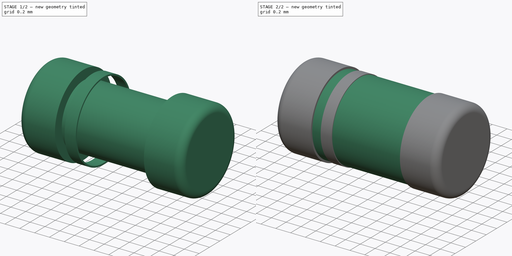
[diagram: build sequence overview — one tinted view per stage of 2, left to right]
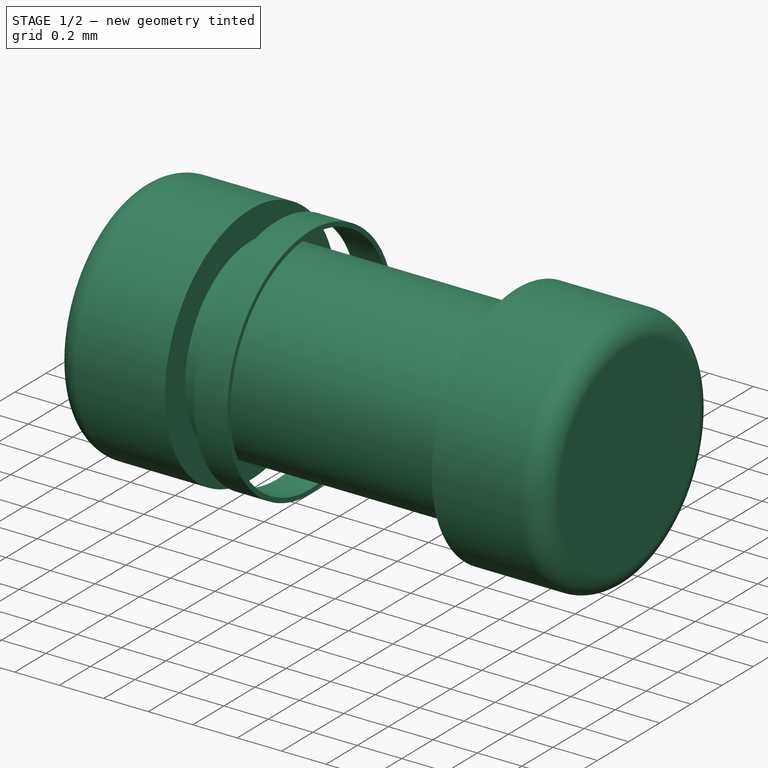
[diagram: stage 1 of 2 — iso view after this stage's code; geometry added in this stage tinted green]
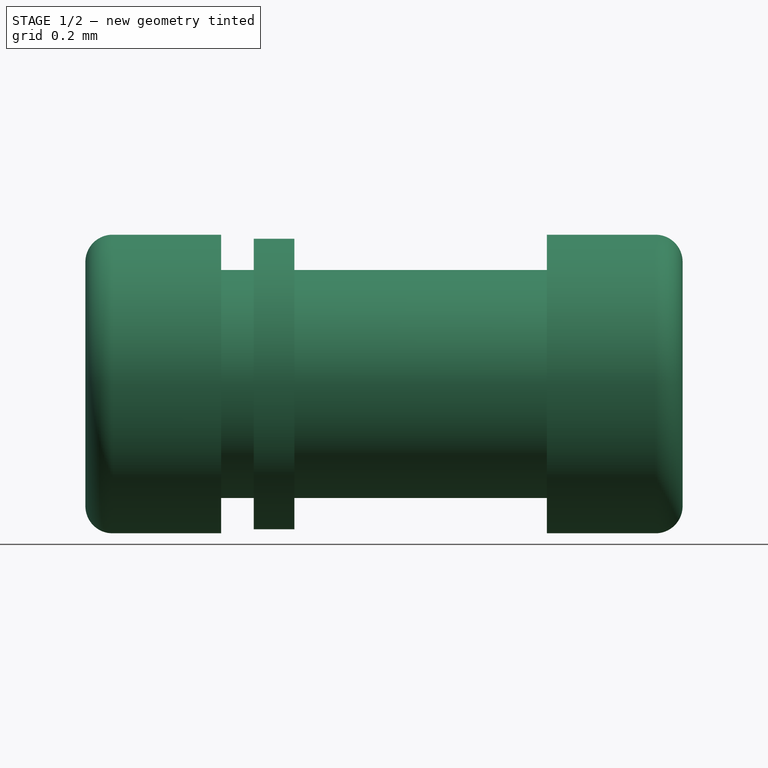
[diagram: stage 1 of 2 — front view after this stage's code; geometry added in this stage tinted green]
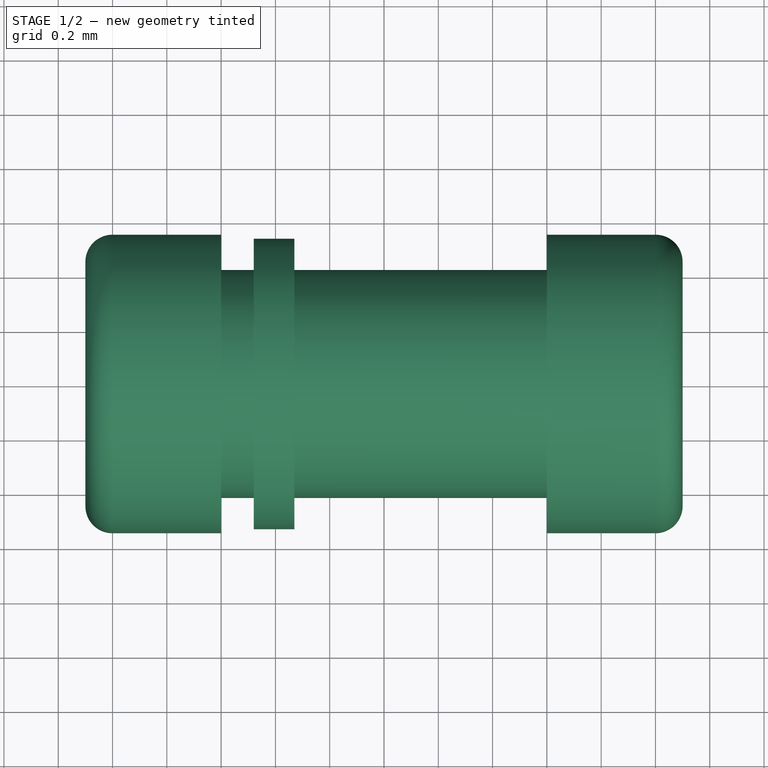
[diagram: stage 1 of 2 — top view after this stage's code; geometry added in this stage tinted green]
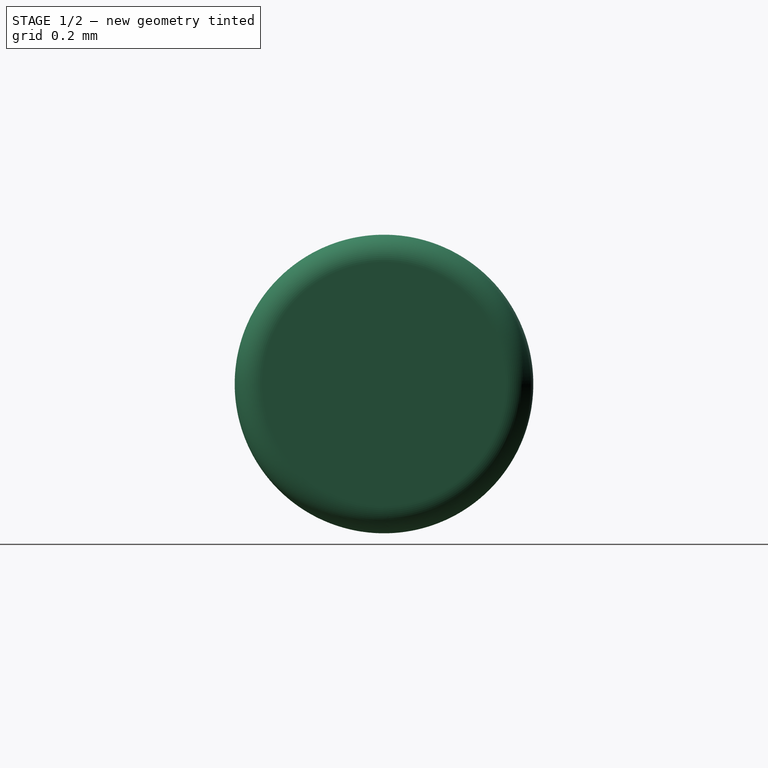
[diagram: stage 1 of 2 — right view after this stage's code; geometry added in this stage tinted green]
FCSTD DOCUMENT  (FreeCAD 0.17R10958 (Git))
Label: D_MicroMELF_Standard
License: All rights reserved
LicenseURL: http://en.wikipedia.org/wiki/All_rights_reserved
objects: Sketcher::SketchObject×3, PartDesign::Revolution×3, Spreadsheet::Sheet×1, Part::MultiFuse×1
note: 10 computed .brp shape members not serialized (recipe doc carries the construction recipe); baked Part::Feature solids carry a one-line shape summary decoded from their .brp

FEATURE [PartDesign::Revolution] Revolution001
  Angle = 360
  Axis = (10,0,0)
  Base = (-8.9,0,0.55)
  Placement = pos=(0,0,0) rot=(1,0,0;1.5708rad)
  Profile = -> Sketch001
  ReferenceAxis = -> Sketch001 [Axis0]
  Reversed = true
FEATURE [Sketcher::SketchObject] Sketch002
  MapMode = 5
  Placement = pos=(0,0,0) rot=(1,0,0;1.5708rad)
  expr: Constraints[13] = (Spreadsheet.Lall - 2 * Spreadsheet.KK) * 0.40000000000000002
  expr: Constraints[10] = Spreadsheet.Di / 2 + 0.01
  expr: Constraints[1] = Spreadsheet.Do / 2
  sketch-geometry (5):
    g0: LineSegment [constr] StartX=-15.0618 StartY=0.55 StartZ=0 EndX=27.6655 EndY=0.55 EndZ=0
    g1: LineSegment StartX=-0.48 StartY=0.035 StartZ=0 EndX=-0.33 EndY=0.035 EndZ=0
    g2: LineSegment StartX=-0.33 StartY=0.035 StartZ=0 EndX=-0.33 EndY=0.015 EndZ=0
    g3: LineSegment StartX=-0.33 StartY=0.015 StartZ=0 EndX=-0.48 EndY=0.015 EndZ=0
    g4: LineSegment StartX=-0.48 StartY=0.015 StartZ=0 EndX=-0.48 EndY=0.035 EndZ=0
  constraints (14):
    c: Horizontal(g0)
    c: DistanceY(g-1,g0) = 0.55
    c: Coincident(g1,g2)
    c: Coincident(g2,g3)
    c: Coincident(g3,g4)
    c: Coincident(g4,g1)
    c: Horizontal(g1)
    c: Horizontal(g3)
    c: Vertical(g2)
    c: Vertical(g4)
    c: DistanceY(g2,g0) = 0.535
    c: DistanceY(g4,g4) = 0.02
    c: DistanceX(g3,g3) = 0.15
    c: DistanceX(g3,g-1) = 0.48
FEATURE [PartDesign::Revolution] Revolution002
  Angle = 360
  Axis = (42.7274,0,0)
  Base = (-15.0618,0,0.55)
  Placement = pos=(0,0,0) rot=(1,0,0;1.5708rad)
  Profile = -> Sketch002
  ReferenceAxis = -> Sketch002 [Axis0]
  Reversed = true
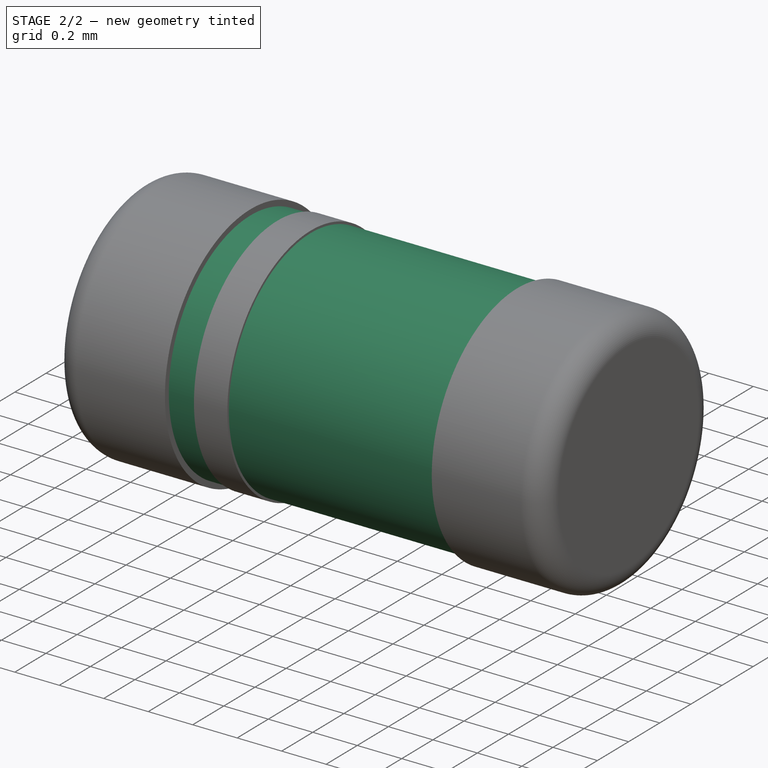
[diagram: stage 2 of 2 — iso view after this stage's code; geometry added in this stage tinted green]
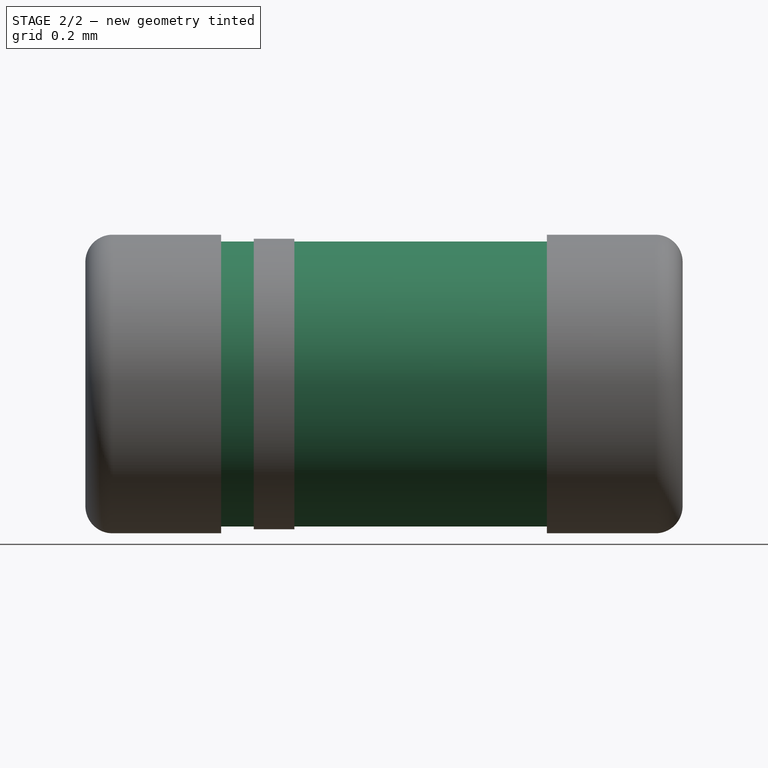
[diagram: stage 2 of 2 — front view after this stage's code; geometry added in this stage tinted green]
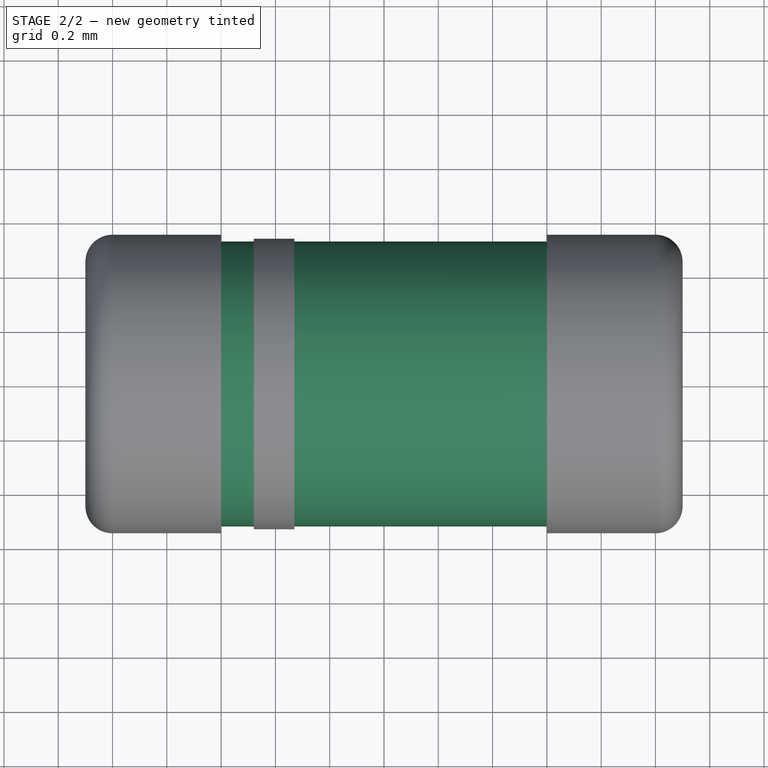
[diagram: stage 2 of 2 — top view after this stage's code; geometry added in this stage tinted green]
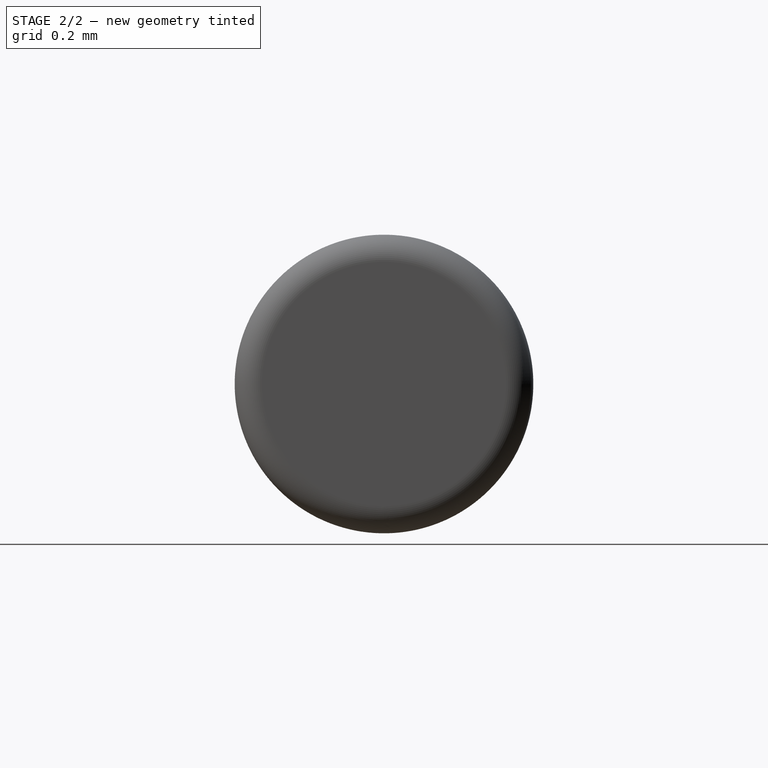
[diagram: stage 2 of 2 — right view after this stage's code; geometry added in this stage tinted green]
FEATURE [Spreadsheet::Sheet] Spreadsheet
  cells = A1=Do; B1(Do)=1.1000000000000001; A2=Di; B2(Di)=1.05; A3=Lall; B3(Lall)=2.2000000000000002; A4=K; B4(KK)=0.5
FEATURE [Sketcher::SketchObject] Sketch
  MapMode = 5
  Placement = pos=(0,0,0) rot=(1,0,0;1.5708rad)
  expr: Constraints[12] = (Spreadsheet.Lall - Spreadsheet.KK) / 2
  expr: Constraints[3] = Spreadsheet.Di / 2
  expr: Constraints[4] = Spreadsheet.Lall - Spreadsheet.KK
  expr: Constraints[13] = Spreadsheet.Do / 2
  sketch-geometry (5):
    g0: LineSegment StartX=-0.85 StartY=0.55 StartZ=0 EndX=0.85 EndY=0.55 EndZ=0
    g1: LineSegment StartX=0.85 StartY=0.55 StartZ=0 EndX=0.85 EndY=0.025 EndZ=0
    g2: LineSegment StartX=0.85 StartY=0.025 StartZ=0 EndX=-0.85 EndY=0.025 EndZ=0
    g3: LineSegment StartX=-0.85 StartY=0.025 StartZ=0 EndX=-0.85 EndY=0.55 EndZ=0
    g4: LineSegment [constr] StartX=-15.0618 StartY=0.55 StartZ=0 EndX=27.6655 EndY=0.55 EndZ=0
  constraints (14):
    c: Vertical(g1)
    c: PointOnObject(g4,g0)
    c: Horizontal(g4)
    c: DistanceY(g1,g1) = 0.525
    c: DistanceX(g0,g0) = 1.7
    c: Coincident(g0,g3)
    c: Coincident(g2,g3)
    c: Coincident(g1,g2)
    c: Coincident(g0,g1)
    c: Vertical(g3)
    c: Horizontal(g2)
    c: Horizontal(g0)
    c: DistanceX(g0,g-1) = 0.85
    c: DistanceY(g-1,g0) = 0.55
FEATURE [Sketcher::SketchObject] Sketch001
  MapMode = 5
  Placement = pos=(0,0,0) rot=(1,0,0;1.5708rad)
  expr: Constraints[23] = Spreadsheet.Di * 0.40000000000000002
  expr: Constraints[26] = Spreadsheet.KK
  expr: Constraints[25] = Spreadsheet.Lall / 2
  expr: Constraints[22] = Spreadsheet.Do / 2
  expr: Constraints[21] = Spreadsheet.Do / 2
  expr: Constraints[24] = Spreadsheet.Lall
  expr: Constraints[27] = Spreadsheet.KK
  expr: Constraints[30] = 10
  sketch-geometry (11):
    g0: LineSegment StartX=-1 StartY=0 StartZ=0 EndX=-0.6 EndY=0 EndZ=0
    g1: LineSegment StartX=-1.1 StartY=0.55 StartZ=0 EndX=-1.1 EndY=0.1 EndZ=0
    g2: LineSegment StartX=0.6 StartY=0 StartZ=0 EndX=1 EndY=0 EndZ=0
    g3: LineSegment StartX=1.1 StartY=0.1 StartZ=0 EndX=1.1 EndY=0.55 EndZ=0
    g4: LineSegment [constr] StartX=-8.9 StartY=0.55 StartZ=0 EndX=1.1 EndY=0.55 EndZ=0
    g5: LineSegment StartX=-0.6 StartY=0 StartZ=0 EndX=-0.6 EndY=0.13 EndZ=0
    g6: LineSegment StartX=-0.6 StartY=0.13 StartZ=0 EndX=0.6 EndY=0.13 EndZ=0
    g7: LineSegment StartX=0.6 StartY=0 StartZ=0 EndX=0.6 EndY=0.13 EndZ=0
    g8: LineSegment StartX=-1.1 StartY=0.55 StartZ=0 EndX=1.1 EndY=0.55 EndZ=0
    g9: ArcOfCircle CenterX=-1 CenterY=0.1 CenterZ=0 NormalX=0 NormalY=0 NormalZ=1 Radius=0.1 StartAngle=3.14159 EndAngle=4.71239
    g10: ArcOfCircle CenterX=1 CenterY=0.1 CenterZ=0 NormalX=0 NormalY=0 NormalZ=1 Radius=0.1 StartAngle=4.71239 EndAngle=6.28319
  constraints (31):
    c: Horizontal(g0)
    c: Vertical(g1)
    c: Horizontal(g2)
    c: Vertical(g3)
    c: Horizontal(g4)
    c: Coincident(g5,g0)
    c: Vertical(g5)
    c: Coincident(g6,g5)
    c: Horizontal(g6)
    c: Coincident(g7,g2)
    c: Vertical(g7)
    c: Coincident(g8,g1)
    c: Coincident(g8,g3)
    c: Horizontal(g8)
    c: Coincident(g6,g7)
    c: Tangent(g0,g9) = -1.5708
    c: Tangent(g1,g9) = -1.5708
    c: Tangent(g2,g10) = -1.5708
    c: Tangent(g3,g10) = -1.5708
    c: Radius(g10) = 0.1
    c: Radius(g9) = 0.1
    c: DistanceY(g0,g1) = 0.55
    c: DistanceY(g-1,g1) = 0.55
    c: DistanceY(g5,g1) = 0.42
    c: DistanceX(g1,g3) = 2.2
    c: DistanceX(g1,g-1) = 1.1
    c: DistanceX(g1,g5) = 0.5
    c: DistanceX(g2,g3) = 0.5
    c: Equal(g5,g7)
    c: Coincident(g4,g3)
    c: DistanceX(g4,g4) = 10
FEATURE [PartDesign::Revolution] Revolution
  Angle = 360
  Axis = (42.7274,0,0)
  Base = (-15.0618,0,0.55)
  Placement = pos=(0,0,0) rot=(1,0,0;1.5708rad)
  Profile = -> Sketch
  ReferenceAxis = -> Sketch [Axis0]
  Reversed = true
FEATURE [Part::MultiFuse] Fusion  label="D_MicroMELF_Standard"
  Shapes = -> [Revolution002,Revolution001,Revolution]
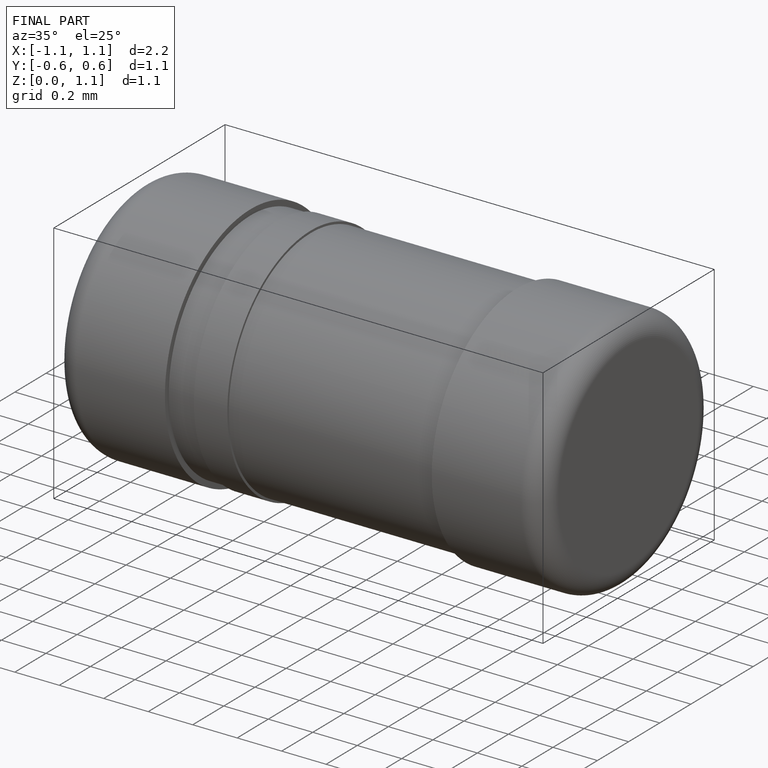
[diagram: finished part — iso view with bounding-box wireframe]
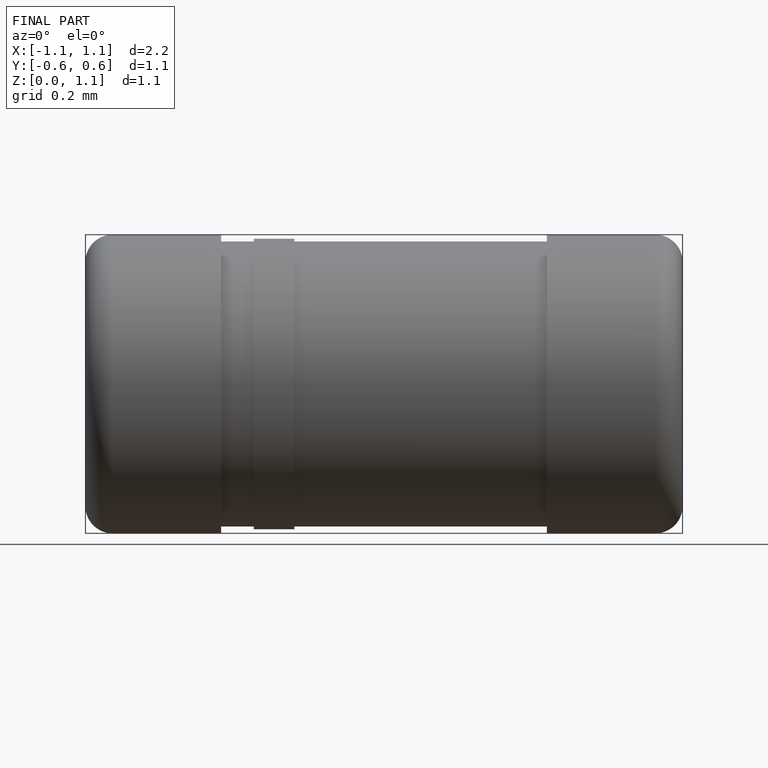
[diagram: finished part — front view with bounding-box wireframe]
